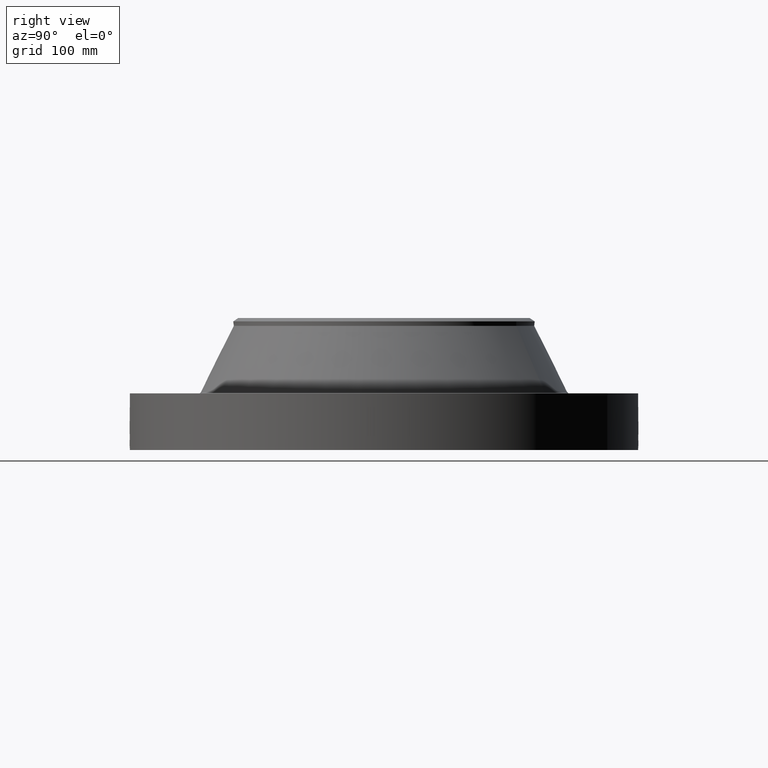
[diagram: clean part render]
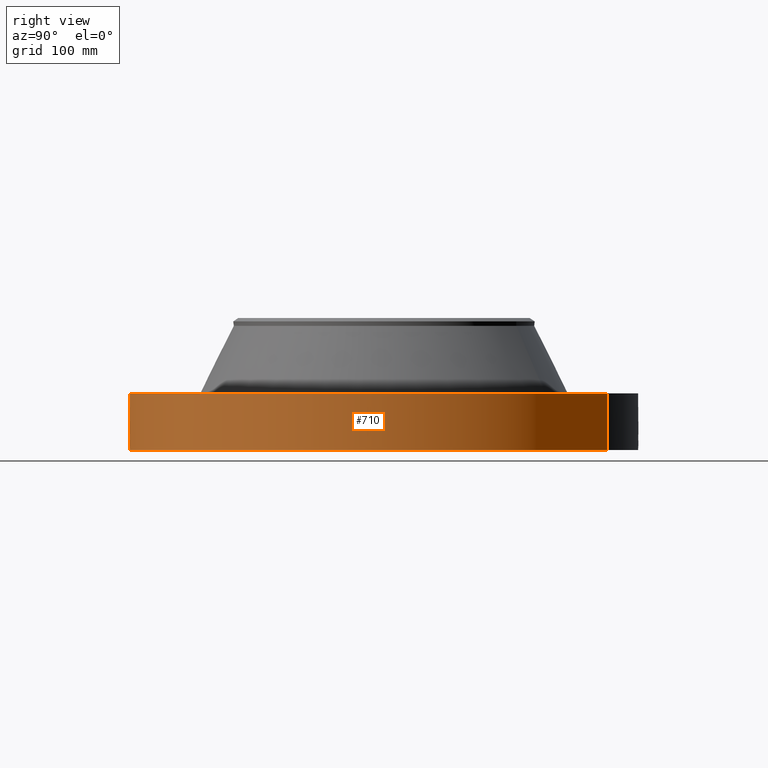
[diagram: same view with one face highlighted and labeled with its STEP entity id]
A machine part, right view. The second image highlights one B-rep face of the part: STEP entity #710.
In plain terms, the highlighted cylindrical surface (partial cylindrical patch) has radius 342.9 mm, axis along (0, 0, -1).
Its self-contained STEP definition (entity closure, byte-faithful):
#38=AXIS2_PLACEMENT_3D('Cylinder Axis2P3D',#35,#36,#37) ;
#169=AXIS2_PLACEMENT_3D('Circle Axis2P3D',#167,#168,$) ;
#614=AXIS2_PLACEMENT_3D('Circle Axis2P3D',#612,#613,$) ;
#35=CARTESIAN_POINT('Axis2P3D Location',(0.,0.,3.75000000001)) ;
#44=CARTESIAN_POINT('Vertex',(-6.47224477118,-11.8473645856,0.250000000001)) ;
#46=CARTESIAN_POINT('Vertex',(6.47224477118,11.8473645856,0.250000000001)) ;
#49=CARTESIAN_POINT('Line Origine',(-6.47224477118,-11.8473645856,1.75000000001)) ;
#53=CARTESIAN_POINT('Vertex',(-6.47224477118,-11.8473645856,3.25000000001)) ;
#60=CARTESIAN_POINT('Vertex',(6.47224477118,11.8473645856,3.25000000001)) ;
#63=CARTESIAN_POINT('Line Origine',(6.47224477118,11.8473645856,1.75000000001)) ;
#167=CARTESIAN_POINT('Axis2P3D Location',(0.,0.,0.250000000001)) ;
#612=CARTESIAN_POINT('Axis2P3D Location',(0.,0.,3.25000000001)) ;
#624=CARTESIAN_POINT('Control Point',(0.00071616338443,-13.4999999811,1.29411846101)) ;
#625=CARTESIAN_POINT('Control Point',(0.0191245178362,-13.4999990045,1.29408127303)) ;
#626=CARTESIAN_POINT('Control Point',(0.037529627115,-13.4999600737,1.29260450845)) ;
#627=CARTESIAN_POINT('Control Point',(0.055708135073,-13.499885059,1.28970628302)) ;
#628=CARTESIAN_POINT('Vertex',(0.000715765429397,-13.4999999811,1.29411851035)) ;
#630=CARTESIAN_POINT('Vertex',(0.0556991140633,-13.4998853499,1.2897077399)) ;
#634=CARTESIAN_POINT('Control Point',(0.0556990172227,-13.4998850966,1.28970718742)) ;
#635=CARTESIAN_POINT('Control Point',(0.0959840709934,-13.499718885,1.2852201931)) ;
#636=CARTESIAN_POINT('Control Point',(0.135611733342,-13.4993681539,1.27339984178)) ;
#637=CARTESIAN_POINT('Control Point',(0.172092953459,-13.4989030672,1.25504483352)) ;
#638=CARTESIAN_POINT('Vertex',(0.172092953459,-13.4989030672,1.25504483352)) ;
#642=CARTESIAN_POINT('Control Point',(0.0308795651486,-13.4999646834,0.531179134181)) ;
#643=CARTESIAN_POINT('Control Point',(0.100086199788,-13.4998063815,0.539944796112)) ;
#644=CARTESIAN_POINT('Control Point',(0.166958153638,-13.4992099387,0.564144801322)) ;
#645=CARTESIAN_POINT('Control Point',(0.226683338667,-13.4982434387,0.602956506411)) ;
#646=CARTESIAN_POINT('Control Point',(0.299163903833,-13.4967497116,0.676999413009)) ;
#647=CARTESIAN_POINT('Control Point',(0.343960580555,-13.4956272524,0.767270475528)) ;
#648=CARTESIAN_POINT('Control Point',(0.355415042034,-13.4953248078,0.79798058948)) ;
#649=CARTESIAN_POINT('Control Point',(0.373927144328,-13.4948243186,0.869272029668)) ;
#650=CARTESIAN_POINT('Control Point',(0.375600047744,-13.4947723198,0.94260827197)) ;
#651=CARTESIAN_POINT('Control Point',(0.371220713421,-13.4948971767,0.983227713785)) ;
#652=CARTESIAN_POINT('Control Point',(0.348764792235,-13.4955204271,1.07567750766)) ;
#653=CARTESIAN_POINT('Control Point',(0.299354910028,-13.4967301117,1.157057498)) ;
#654=CARTESIAN_POINT('Control Point',(0.262887376353,-13.4975357304,1.19799125537)) ;
#655=CARTESIAN_POINT('Control Point',(0.219691322028,-13.4982962517,1.23109638713)) ;
#656=CARTESIAN_POINT('Control Point',(0.172092953459,-13.4989030672,1.25504483352)) ;
#657=CARTESIAN_POINT('Vertex',(0.0308795651486,-13.4999646834,0.531179134181)) ;
#661=CARTESIAN_POINT('Control Point',(0.0308795651486,-13.4999646834,0.531179134181)) ;
#662=CARTESIAN_POINT('Control Point',(0.0205813206501,-13.4999882394,0.53087310425)) ;
#663=CARTESIAN_POINT('Control Point',(0.0102759877176,-13.5000000021,0.530938455266)) ;
#664=CARTESIAN_POINT('Control Point',(-2.72878351902E-006,-13.5000000001,0.531374667805)) ;
#665=CARTESIAN_POINT('Vertex',(-2.72878354408E-006,-13.5000000001,0.531374667805)) ;
#669=CARTESIAN_POINT('Control Point',(-0.192739114623,-13.4986240645,0.587204305079)) ;
#670=CARTESIAN_POINT('Control Point',(-0.149049208657,-13.4992478876,0.561917453116)) ;
#671=CARTESIAN_POINT('Control Point',(-0.101124622046,-13.4997443844,0.543737116691)) ;
#672=CARTESIAN_POINT('Control Point',(-0.050808811823,-13.4999999898,0.533530796073)) ;
#673=CARTESIAN_POINT('Control Point',(-2.72878354299E-006,-13.5000000001,0.531374667805)) ;
#674=CARTESIAN_POINT('Vertex',(-0.192739114623,-13.4986240645,0.587204305079)) ;
#678=CARTESIAN_POINT('Control Point',(-0.192739114623,-13.4986240645,0.587204305079)) ;
#679=CARTESIAN_POINT('Control Point',(-0.249648996599,-13.4978114809,0.620142612773)) ;
#680=CARTESIAN_POINT('Control Point',(-0.299842663996,-13.4967948198,0.664383636308)) ;
#681=CARTESIAN_POINT('Control Point',(-0.340183709821,-13.4957590589,0.718420983838)) ;
#682=CARTESIAN_POINT('Control Point',(-0.384653582711,-13.4945301676,0.81651672545)) ;
#683=CARTESIAN_POINT('Control Point',(-0.393399234548,-13.4942653225,0.921811048901)) ;
#684=CARTESIAN_POINT('Control Point',(-0.391340684781,-13.4943269928,0.961928545229)) ;
#685=CARTESIAN_POINT('Control Point',(-0.377288740506,-13.4947407673,1.03678247598)) ;
#686=CARTESIAN_POINT('Control Point',(-0.345274775659,-13.495598203,1.10517952426)) ;
#687=CARTESIAN_POINT('Control Point',(-0.326249986835,-13.4960822682,1.13559900319)) ;
#688=CARTESIAN_POINT('Control Point',(-0.264410404278,-13.4975216198,1.21232042463)) ;
#689=CARTESIAN_POINT('Control Point',(-0.18107095062,-13.4989559568,1.26549366884)) ;
#690=CARTESIAN_POINT('Control Point',(-0.122014472909,-13.4996607668,1.2876412523)) ;
#691=CARTESIAN_POINT('Control Point',(-0.0605236564837,-13.500000116,1.2971216252)) ;
#692=CARTESIAN_POINT('Control Point',(2.5857935549E-005,-13.5,1.2941529843)) ;
#693=CARTESIAN_POINT('Vertex',(2.58579355451E-005,-13.5,1.2941529843)) ;
#697=CARTESIAN_POINT('Control Point',(0.000715765419679,-13.4999999811,1.29411851033)) ;
#698=CARTESIAN_POINT('Control Point',(0.000370836143766,-13.4999999994,1.29413607062)) ;
#699=CARTESIAN_POINT('Control Point',(2.58579407231E-005,-13.5,1.2941529843)) ;
#36=DIRECTION('Axis2P3D Direction',(0.,0.,-0.0393700787402)) ;
#37=DIRECTION('Axis2P3D XDirection',(0.0188750212049,0.0345504945626,0.)) ;
#50=DIRECTION('Vector Direction',(0.,0.,-0.0393700787402)) ;
#64=DIRECTION('Vector Direction',(0.,0.,-0.0393700787402)) ;
#168=DIRECTION('Axis2P3D Direction',(0.,0.,-0.0393700787402)) ;
#613=DIRECTION('Axis2P3D Direction',(0.,0.,-0.0393700787402)) ;
#51=VECTOR('Line Direction',#50,0.0393700787402) ;
#65=VECTOR('Line Direction',#64,0.0393700787402) ;
#618=ORIENTED_EDGE('',*,*,#171,.F.) ;
#619=ORIENTED_EDGE('',*,*,#67,.T.) ;
#620=ORIENTED_EDGE('',*,*,#616,.T.) ;
#621=ORIENTED_EDGE('',*,*,#55,.F.) ;
#702=ORIENTED_EDGE('',*,*,#632,.T.) ;
#703=ORIENTED_EDGE('',*,*,#640,.T.) ;
#704=ORIENTED_EDGE('',*,*,#659,.F.) ;
#705=ORIENTED_EDGE('',*,*,#667,.T.) ;
#706=ORIENTED_EDGE('',*,*,#676,.F.) ;
#707=ORIENTED_EDGE('',*,*,#695,.T.) ;
#708=ORIENTED_EDGE('',*,*,#700,.F.) ;
#709=FACE_BOUND('',#701,.T.) ;
#710=ADVANCED_FACE('PartBody',(#622,#709),#39,.T.) ;
#623=B_SPLINE_CURVE_WITH_KNOTS('',3,(#624,#625,#626,#627),.UNSPECIFIED.,.F.,.U.,(4,4),(34.616490439,36.6587230533),.UNSPECIFIED.) ;
#633=B_SPLINE_CURVE_WITH_KNOTS('',3,(#634,#635,#636,#637),.UNSPECIFIED.,.F.,.U.,(4,4),(0.,4.55456924999),.UNSPECIFIED.) ;
#641=B_SPLINE_CURVE_WITH_KNOTS('',5,(#642,#643,#644,#645,#646,#647,#648,#649,#650,#651,#652,#653,#654,#655,#656),.UNSPECIFIED.,.F.,.U.,(6,3,3,3,6),(0.,12.1234786683,17.9812765858,25.3564030346,35.2605888899),.UNSPECIFIED.) ;
#660=B_SPLINE_CURVE_WITH_KNOTS('',3,(#661,#662,#663,#664),.UNSPECIFIED.,.F.,.U.,(4,4),(0.,1.07424609125),.UNSPECIFIED.) ;
#668=B_SPLINE_CURVE_WITH_KNOTS('',4,(#669,#670,#671,#672,#673),.UNSPECIFIED.,.F.,.U.,(5,5),(0.,7.07977317164),.UNSPECIFIED.) ;
#677=B_SPLINE_CURVE_WITH_KNOTS('',5,(#678,#679,#680,#681,#682,#683,#684,#685,#686,#687,#688,#689,#690,#691,#692),.UNSPECIFIED.,.F.,.U.,(6,3,3,3,6),(0.,11.5275208504,18.5881834538,24.9982058169,36.316166609),.UNSPECIFIED.) ;
#696=B_SPLINE_CURVE_WITH_KNOTS('',2,(#697,#698,#699),.UNSPECIFIED.,.F.,.U.,(3,3),(1.02592161683,1.05171505204),.UNSPECIFIED.) ;
#170=CIRCLE('generated circle',#169,13.5000000001) ;
#615=CIRCLE('generated circle',#614,13.5000000001) ;
#39=CYLINDRICAL_SURFACE('generated cylinder',#38,13.5000000001) ;
#55=EDGE_CURVE('',#45,#54,#52,.F.) ;
#67=EDGE_CURVE('',#47,#61,#66,.F.) ;
#171=EDGE_CURVE('',#47,#45,#170,.T.) ;
#616=EDGE_CURVE('',#61,#54,#615,.T.) ;
#632=EDGE_CURVE('',#629,#631,#623,.T.) ;
#640=EDGE_CURVE('',#631,#639,#633,.T.) ;
#659=EDGE_CURVE('',#658,#639,#641,.T.) ;
#667=EDGE_CURVE('',#658,#666,#660,.T.) ;
#676=EDGE_CURVE('',#675,#666,#668,.T.) ;
#695=EDGE_CURVE('',#675,#694,#677,.T.) ;
#700=EDGE_CURVE('',#629,#694,#696,.T.) ;
#617=EDGE_LOOP('',(#618,#619,#620,#621)) ;
#701=EDGE_LOOP('',(#702,#703,#704,#705,#706,#707,#708)) ;
#622=FACE_OUTER_BOUND('',#617,.T.) ;
#52=LINE('Line',#49,#51) ;
#66=LINE('Line',#63,#65) ;
#45=VERTEX_POINT('',#44) ;
#47=VERTEX_POINT('',#46) ;
#54=VERTEX_POINT('',#53) ;
#61=VERTEX_POINT('',#60) ;
#629=VERTEX_POINT('',#628) ;
#631=VERTEX_POINT('',#630) ;
#639=VERTEX_POINT('',#638) ;
#658=VERTEX_POINT('',#657) ;
#666=VERTEX_POINT('',#665) ;
#675=VERTEX_POINT('',#674) ;
#694=VERTEX_POINT('',#693) ;